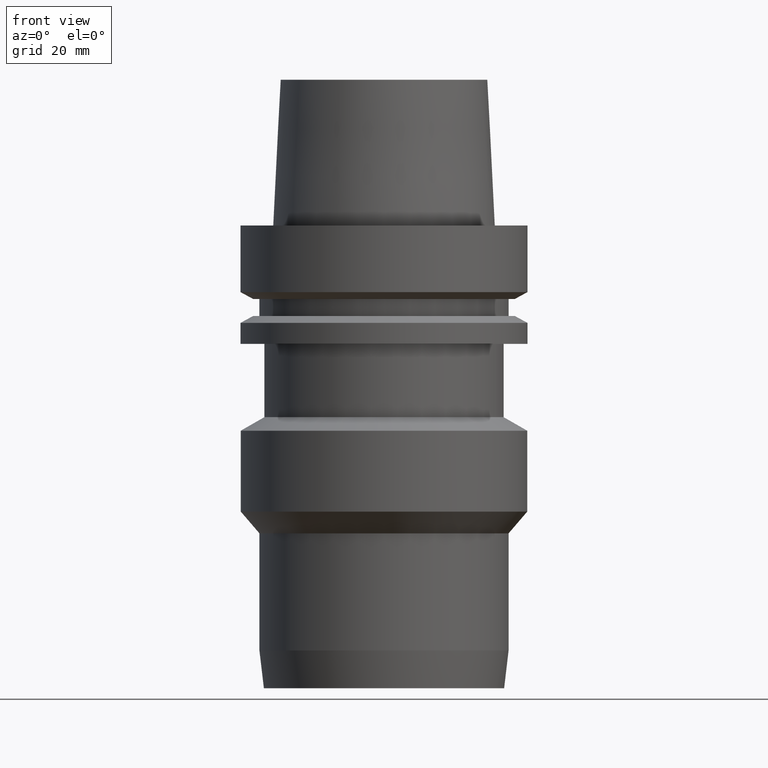
[diagram: clean part render]
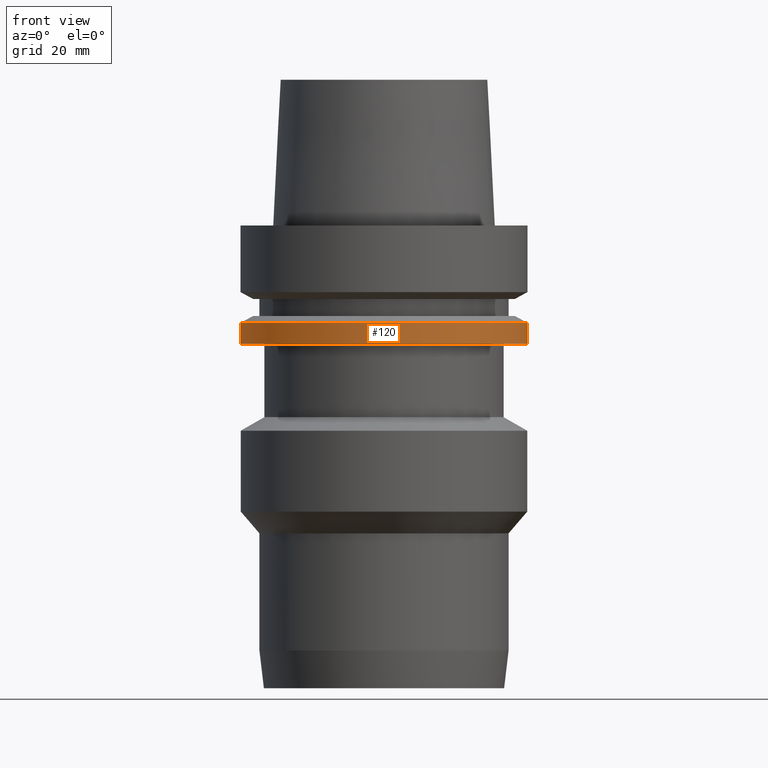
[diagram: same view with one face highlighted and labeled with its STEP entity id]
A machine part, front view. The second image highlights one B-rep face of the part: STEP entity #120.
In plain terms, the highlighted cylindrical surface (bore or boss wall) has radius 31.5 mm, axis along (-0, -0, 1).
Its self-contained STEP definition (entity closure, byte-faithful):
#60=EDGE_CURVE('Unnamed[1]',#167,#167,#168,.T.);
#103=EDGE_CURVE('Unnamed[1]',#233,#233,#234,.T.);
#120=ADVANCED_FACE('Unnamed[1]',(#260,#261),#262,.T.);
#167=VERTEX_POINT('',#316);
#168=CIRCLE('',#317,31.4999999999998);
#233=VERTEX_POINT('',#398);
#234=CIRCLE('',#399,31.5);
#260=FACE_BOUND('',#431,.T.);
#261=FACE_BOUND('',#432,.T.);
#262=CYLINDRICAL_SURFACE('',#433,31.4999999999999);
#316=CARTESIAN_POINT('',(1.59204083889155E-015,31.4999999999998,-25.9999999999999));
#317=AXIS2_PLACEMENT_3D('',#492,#493,#494);
#398=CARTESIAN_POINT('',(1.30899429078397E-015,31.5,-21.3774990747592));
#399=AXIS2_PLACEMENT_3D('',#564,#565,#566);
#431=EDGE_LOOP('',(#595));
#432=EDGE_LOOP('',(#596));
#433=AXIS2_PLACEMENT_3D('',#597,#598,#599);
#492=CARTESIAN_POINT('',(1.59204083889155E-015,3.1840816777831E-015,-25.9999999999999));
#493=DIRECTION('',(-6.12323399573676E-017,-1.22464679914735E-016,1.0));
#494=DIRECTION('',(-1.23259516440783E-032,1.0,1.22464679914735E-016));
#564=CARTESIAN_POINT('',(1.30899429078397E-015,2.61798858156794E-015,-21.3774990747592));
#565=DIRECTION('',(-6.12323399573677E-017,-1.22464679914735E-016,1.0));
#566=DIRECTION('',(-1.23259516440783E-032,1.0,1.22464679914735E-016));
#595=ORIENTED_EDGE('',*,*,#103,.F.);
#596=ORIENTED_EDGE('',*,*,#60,.T.);
#597=CARTESIAN_POINT('',(1.45051756483776E-015,2.90103512967552E-015,-23.6887495373796));
#598=DIRECTION('',(-6.12323399573677E-017,-1.22464679914735E-016,1.0));
#599=DIRECTION('',(-1.23259516440783E-032,1.0,1.22464679914735E-016));